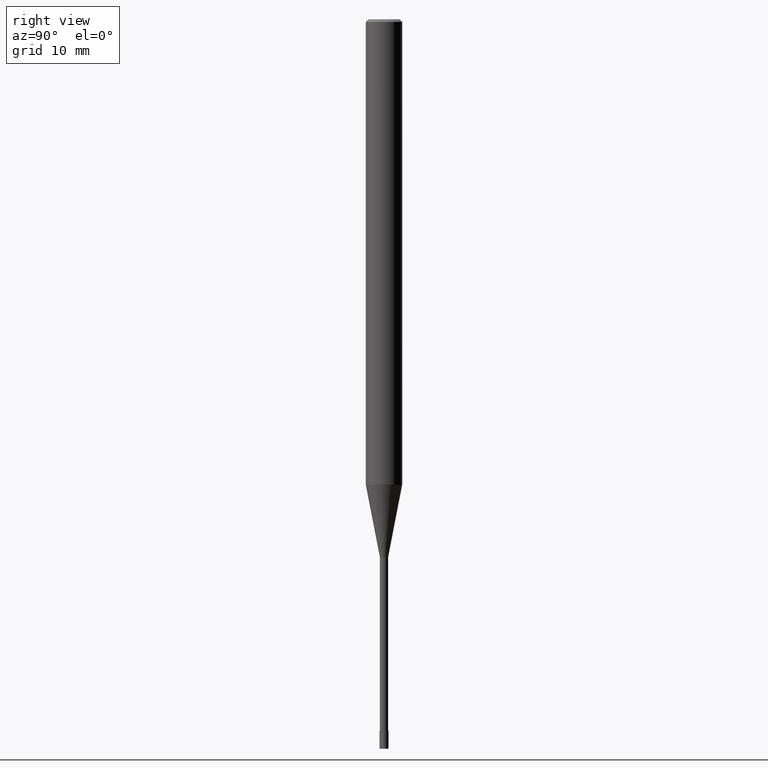
[diagram: clean part render]
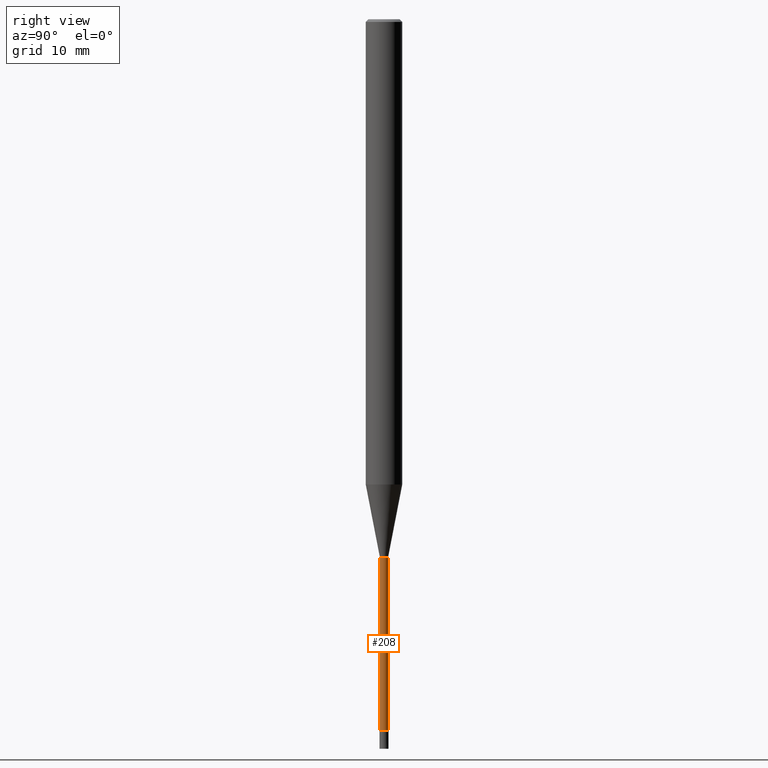
[diagram: same view with one face highlighted and labeled with its STEP entity id]
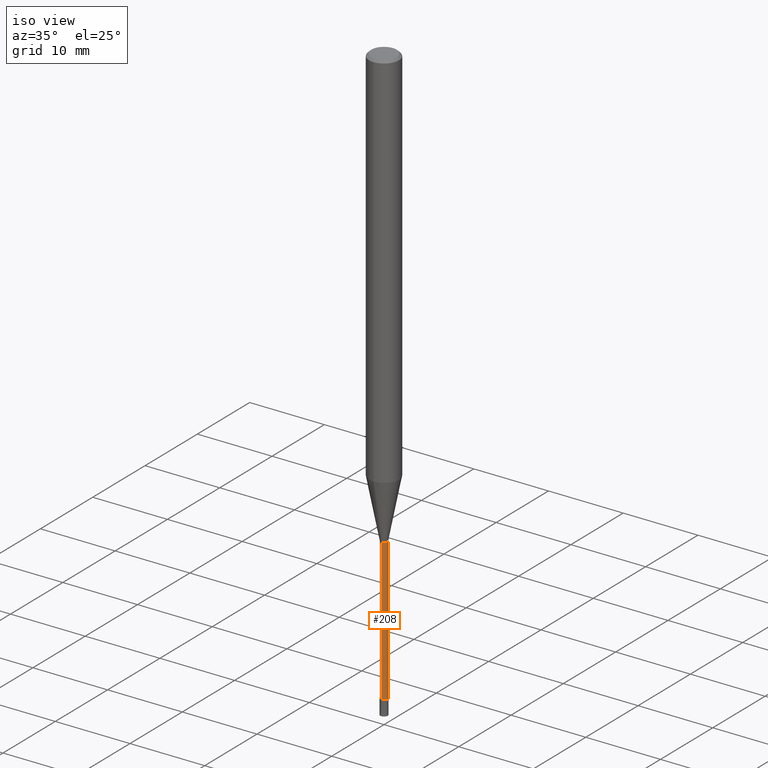
[diagram: same view with one face highlighted and labeled with its STEP entity id]
A machine part, right view. The second image highlights one B-rep face of the part: STEP entity #208.
A second angle (iso view) of the same face is appended — the face is thin or edge-on in the first view.
In plain terms, the highlighted cylindrical surface (edge-blend (fillet) strip) has radius 0.45 mm, axis along (-0, -0, 1).
Its self-contained STEP definition (entity closure, byte-faithful):
#100=VERTEX_POINT('',#237);
#116=EDGE_CURVE('',#100,#198,#255,.T.);
#126=VERTEX_POINT('',#266);
#146=VERTEX_POINT('',#289);
#156=EDGE_CURVE('',#146,#198,#300,.T.);
#186=EDGE_CURVE('',#146,#126,#335,.T.);
#194=EDGE_CURVE('',#126,#100,#343,.T.);
#198=VERTEX_POINT('',#347);
#208=ADVANCED_FACE('',(#360),#361,.T.);
#237=CARTESIAN_POINT('',(5.51011628902379E-017,-0.44995,-78.0));
#255=LINE('',#406,#407);
#266=CARTESIAN_POINT('',(0.0,0.44995,-78.0));
#289=CARTESIAN_POINT('',(0.0,0.44995,-59.0));
#300=CIRCLE('',#466,0.44995);
#335=LINE('',#507,#508);
#343=CIRCLE('',#519,0.44995);
#347=CARTESIAN_POINT('',(5.51011628902379E-017,-0.44995,-59.0));
#360=FACE_OUTER_BOUND('',#539,.T.);
#361=CYLINDRICAL_SURFACE('',#540,0.44995);
#406=CARTESIAN_POINT('',(5.51011628902379E-017,-0.44995,-68.5));
#407=VECTOR('',#567,1.0);
#466=AXIS2_PLACEMENT_3D('',#626,#627,#628);
#507=CARTESIAN_POINT('',(-5.51011628902379E-017,0.44995,-68.5));
#508=VECTOR('',#676,1.0);
#519=AXIS2_PLACEMENT_3D('',#683,#684,#685);
#539=EDGE_LOOP('',(#707,#708,#709,#710));
#540=AXIS2_PLACEMENT_3D('',#711,#712,#713);
#567=DIRECTION('',(-0.0,-0.0,1.0));
#626=CARTESIAN_POINT('',(0.0,0.0,-59.0));
#627=DIRECTION('',(0.0,0.0,-1.0));
#628=DIRECTION('',(0.0,1.0,0.0));
#676=DIRECTION('',(0.0,0.0,-1.0));
#683=CARTESIAN_POINT('',(0.0,0.0,-78.0));
#684=DIRECTION('',(0.0,0.0,-1.0));
#685=DIRECTION('',(0.0,1.0,0.0));
#707=ORIENTED_EDGE('',*,*,#186,.F.);
#708=ORIENTED_EDGE('',*,*,#156,.T.);
#709=ORIENTED_EDGE('',*,*,#116,.F.);
#710=ORIENTED_EDGE('',*,*,#194,.F.);
#711=CARTESIAN_POINT('',(0.0,0.0,-68.5));
#712=DIRECTION('',(-0.0,-0.0,1.0));
#713=DIRECTION('',(0.0,1.0,0.0));